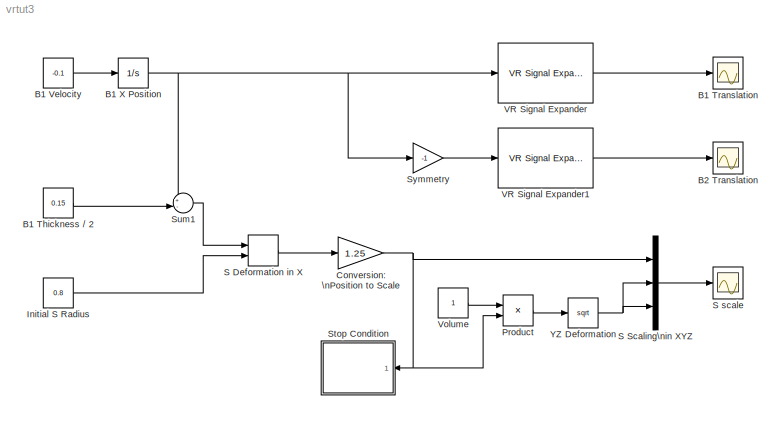
MODEL vrtut3
KIND model
BLOCK [Constant] B1 Thickness // 2
  Value = 0.15
BLOCK [Scope] B1 Translation
  DataFormat = StructureWithTime
  NumInputPorts = 1
  Ports = [1]
BLOCK [Constant] B1 Velocity
  Value = -0.1
BLOCK [Integrator] B1 X Position
  InitialCondition = 3
  LowerSaturationLimit = -Inf
  Ports = [1, 1]
  UpperSaturationLimit = Inf
BLOCK [Scope] B2 Translation
  DataFormat = StructureWithTime
  NumInputPorts = 1
  Ports = [1]
BLOCK [Gain] Conversion: \nPosition to Scale
  Gain = 1.25
BLOCK [Constant] Initial S Radius
  Value = 0.8
BLOCK [Product] Product
  Inputs = */
  Ports = [2, 1]
BLOCK [MinMax] S Deformation in X 
  Function = min
  Inputs = 2
  Ports = [2, 1]
BLOCK [Mux] S Scaling\nin XYZ
  DisplayOption = bar
  Inputs = 3
  Ports = [3, 1]
BLOCK [Scope] S scale
  DataFormat = StructureWithTime
  NumInputPorts = 1
  Ports = [1]
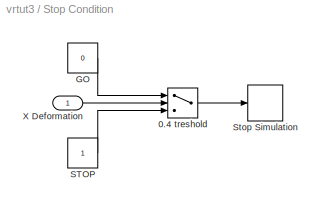
BLOCK [SubSystem] Stop Condition
  EnableExecutionContextPropagation = on
  MinAlgLoopOccurrences = off
  Ports = [1]
  TreatAsAtomicUnit = off
BLOCK [Switch] Stop Condition/0.4 treshold
  Threshold = 0.4
BLOCK [Constant] Stop Condition/GO
  Value = 0
BLOCK [Constant] Stop Condition/STOP
BLOCK [Stop] Stop Condition/Stop Simulation
BLOCK [Inport] Stop Condition/X Deformation
  IconDisplay = Port number
  LatchInput = off
BLOCK [Sum] Sum1
  IconShape = round
  Inputs = +-|
  Ports = [2, 1]
BLOCK [Gain] Symmetry
  Gain = -1
BLOCK [Reference] VR Signal Expander  REF=vrlib/VR Signal Expander
  Ports = [1, 1]
  ShowPortLabels = on
  SourceBlock = vrlib/VR Signal Expander
  SourceType = VR Signal Expander
  outidx = 1
  outwidth = 3
BLOCK [Reference] VR Signal Expander1  REF=vrlib/VR Signal Expander
  Ports = [1, 1]
  ShowPortLabels = on
  SourceBlock = vrlib/VR Signal Expander
  SourceType = VR Signal Expander
  outidx = 1
  outwidth = 3
BLOCK [Constant] Volume
BLOCK [Math] YZ Deformation
  Operator = sqrt
  Ports = [1, 1]
LINE B1 Thickness // 2:1 -> Sum1:2
LINE B1 Velocity:1 -> B1 X Position:1
NET B1 X Position:1 -> Sum1:1, Symmetry:1, VR Signal Expander:1
NET Conversion: \nPosition to Scale:1 -> Product:2, S Scaling\nin XYZ:1, Stop Condition:1
LINE Initial S Radius:1 -> S Deformation in X :2
LINE Product:1 -> YZ Deformation:1
LINE S Deformation in X :1 -> Conversion: \nPosition to Scale:1
LINE S Scaling\nin XYZ:1 -> S scale:1
LINE Stop Condition/0.4 treshold:1 -> Stop Condition/Stop Simulation:1
LINE Stop Condition/GO:1 -> Stop Condition/0.4 treshold:1
LINE Stop Condition/STOP:1 -> Stop Condition/0.4 treshold:3
LINE Stop Condition/X Deformation:1 -> Stop Condition/0.4 treshold:2
LINE Sum1:1 -> S Deformation in X :1
LINE Symmetry:1 -> VR Signal Expander1:1
LINE VR Signal Expander1:1 -> B2 Translation:1
LINE VR Signal Expander:1 -> B1 Translation:1
LINE Volume:1 -> Product:1
NET YZ Deformation:1 -> S Scaling\nin XYZ:2, S Scaling\nin XYZ:3
note: NET lines group one-source signal fan-out (src -> all destinations, sorted); 1:1 wires keep LINE
